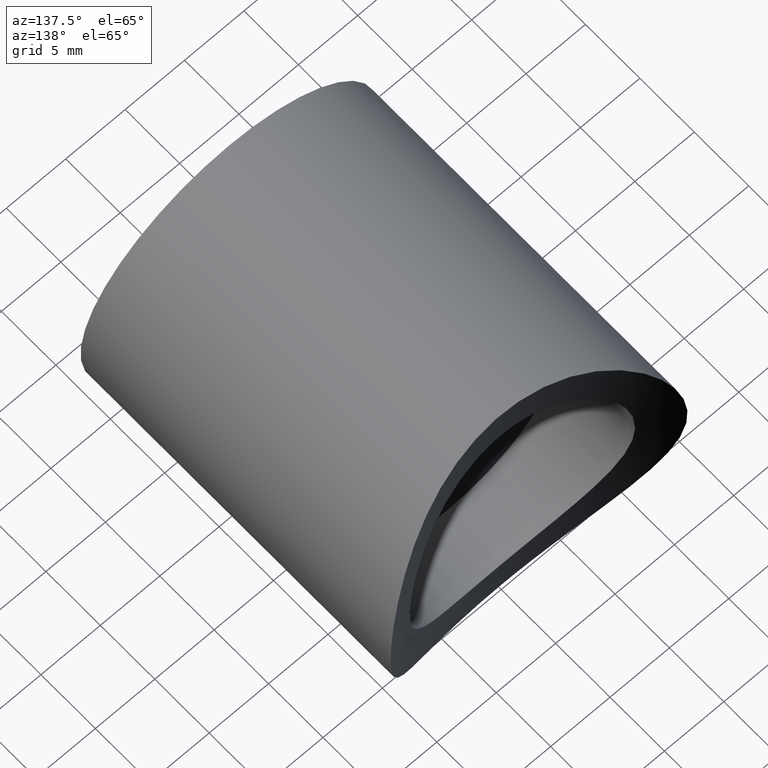
[diagram: clean part render]
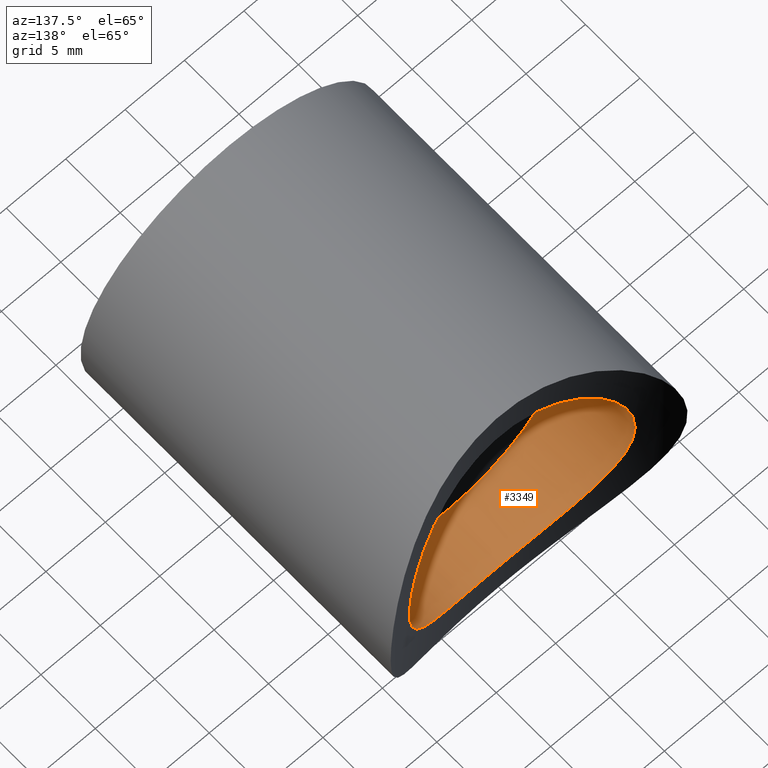
[diagram: same view with one face highlighted and labeled with its STEP entity id]
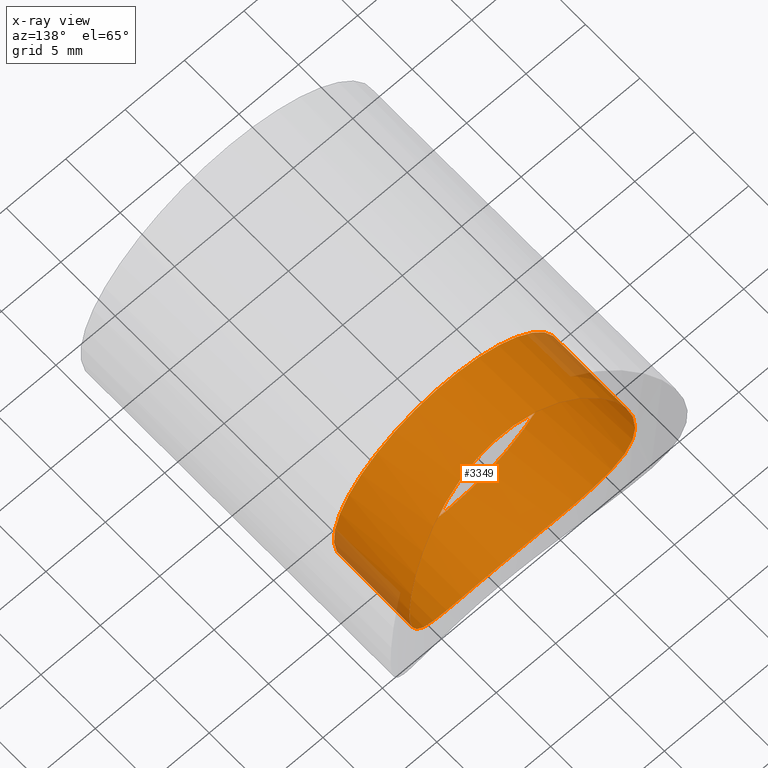
[diagram: x-ray of the same camera — body ghosted, the highlighted face saturated]
A machine part, auxiliary view. The second image highlights one B-rep face of the part: STEP entity #3349.
The next image is the same camera in x-ray: the body ghosted, the highlighted face saturated — about 5% of this face is hidden behind the body in this view.
In plain terms, the highlighted cylindrical surface (bore or boss wall) has radius 9.5 mm, axis along (-0, -1, -0).
Its self-contained STEP definition (entity closure, byte-faithful):
#130 = VERTEX_POINT ( 'NONE', #10919 ) ;
#272 = DIRECTION ( 'NONE',  ( 0.000000000000000000, 0.000000000000000000, -1.000000000000000000 ) ) ;
#616 = CARTESIAN_POINT ( 'NONE',  ( 8.990454928467288553, 26.73562935201542601, -3.085357486730779364 ) ) ;
#668 = CARTESIAN_POINT ( 'NONE',  ( 8.237217831319831873, 26.44533245457878223, 4.772522679604954021 ) ) ;
#724 = CARTESIAN_POINT ( 'NONE',  ( 7.723775209362806038, 26.26772316830312803, 5.539673194081197849 ) ) ;
#772 = CARTESIAN_POINT ( 'NONE',  ( 0.6367274069740926912, 25.00637850114738114, 9.483817578424563521 ) ) ;
#805 = DIRECTION ( 'NONE',  ( -0.000000000000000000, -1.000000000000000000, -0.000000000000000000 ) ) ;
#819 = CARTESIAN_POINT ( 'NONE',  ( -8.645799211394617600, 26.60029495687120260, 3.949277084034160001 ) ) ;
#873 = VERTEX_POINT ( 'NONE', #3910 ) ;
#1027 = CARTESIAN_POINT ( 'NONE',  ( -2.477368257026581588, 25.11946122093323552, 9.192778334958580544 ) ) ;
#1748 = CARTESIAN_POINT ( 'NONE',  ( 8.527852376057262873, 26.55434819827350168, -4.231666778120477090 ) ) ;
#1800 = CARTESIAN_POINT ( 'NONE',  ( 2.476898393227373152, 25.12545592991584442, -9.176787205671457670 ) ) ;
#1850 = CARTESIAN_POINT ( 'NONE',  ( 9.011774073292215803, 26.74291890696499863, 3.071009793062427828 ) ) ;
#2057 = CARTESIAN_POINT ( 'NONE',  ( -8.226763975962532172, 26.44389147346072733, -4.760989118344688187 ) ) ;
#2107 = CARTESIAN_POINT ( 'NONE',  ( -7.153422303367721113, 26.07924161334418756, 6.282005769728957745 ) ) ;
#2157 = CARTESIAN_POINT ( 'NONE',  ( -3.072267678048737682, 25.18916197169116700, 9.011029675267774763 ) ) ;
#2211 = CARTESIAN_POINT ( 'NONE',  ( -4.766860932096798287, 25.47348250131881642, 8.223378779994927612 ) ) ;
#2942 = CARTESIAN_POINT ( 'NONE',  ( 8.529957691302314515, 26.55510728411172394, 4.228829020159077245 ) ) ;
#2992 = CARTESIAN_POINT ( 'NONE',  ( 9.376693620057872991, 26.89456204277399820, 1.557247264431475431 ) ) ;
#3042 = ORIENTED_EDGE ( 'NONE', *, *, #3471, .T. ) ;
#3097 = CARTESIAN_POINT ( 'NONE',  ( 9.500381635804105329, 26.94717925683632842, 0.3015378183090482445 ) ) ;
#3130 = CARTESIAN_POINT ( 'NONE',  ( 0.000000000000000000, 49.15000000000000568, 0.000000000000000000 ) ) ;
#3147 = CARTESIAN_POINT ( 'NONE',  ( -9.434962940845295520, 26.91889607188140943, 1.273160634128868818 ) ) ;
#3227 = FACE_OUTER_BOUND ( 'NONE', #12483, .T. ) ;
#3242 = CARTESIAN_POINT ( 'NONE',  ( -3.934444486296401422, 25.32087562434656292, 8.652572895259922348 ) ) ;
#3296 = CARTESIAN_POINT ( 'NONE',  ( -9.187328606542145337, 26.81541917489055393, 2.496488888585715493 ) ) ;
#3343 = CARTESIAN_POINT ( 'NONE',  ( -8.510542519066497391, 26.54872143713437183, 4.232847530208180054 ) ) ;
#3349 = ADVANCED_FACE ( 'NONE', ( #9012, #3227 ), #5097, .F. ) ;
#3471 = EDGE_CURVE ( 'NONE', #130, #130, #14219, .T. ) ;
#3599 = EDGE_LOOP ( 'NONE', ( #13881 ) ) ;
#3910 = CARTESIAN_POINT ( 'NONE',  ( 0.000000000000000000, 24.99999999999999289, -9.500000000000000000 ) ) ;
#4071 = CARTESIAN_POINT ( 'NONE',  ( 4.777492450567407900, 25.47141337804063355, -8.234587001808481688 ) ) ;
#4119 = CARTESIAN_POINT ( 'NONE',  ( 1.573465314519182368, 25.04932036444492738, 9.374090728484139490 ) ) ;
#4176 = CARTESIAN_POINT ( 'NONE',  ( 9.251696904950398093, 26.84230876325579018, -2.180429874088624320 ) ) ;
#4281 = CARTESIAN_POINT ( 'NONE',  ( 3.949770568916393110, 25.32343629741845703, 8.645516123807398756 ) ) ;
#4330 = CARTESIAN_POINT ( 'NONE',  ( -4.218238365120579481, 25.36961082937598988, 8.517827586905386994 ) ) ;
#4384 = CARTESIAN_POINT ( 'NONE',  ( -6.277639297956271847, 25.82888153849502544, -7.137010952105956818 ) ) ;
#4537 = CARTESIAN_POINT ( 'NONE',  ( -8.996200247582851972, 26.73793805095572296, -3.068502061978073403 ) ) ;
#4873 = CARTESIAN_POINT ( 'NONE',  ( 0.000000000000000000, 20.00000000000000000, 0.000000000000000000 ) ) ;
#5097 = CYLINDRICAL_SURFACE ( 'NONE', #10809, 9.500000000000000000 ) ;
#5284 = CARTESIAN_POINT ( 'NONE',  ( 0.6343488039815247115, 24.99999999999999645, -9.499999999999998224 ) ) ;
#5393 = CARTESIAN_POINT ( 'NONE',  ( 9.193056664637765607, 26.81778522380194829, 2.475342058951149671 ) ) ;
#5440 = CARTESIAN_POINT ( 'NONE',  ( 9.173829633520957927, 26.81005503092796971, -2.487681751522923257 ) ) ;
#5494 = CARTESIAN_POINT ( 'NONE',  ( 7.544457634476878560, 26.20576920126883635, -5.806659888272251102 ) ) ;
#5544 = CARTESIAN_POINT ( 'NONE',  ( -5.553079317562386485, 25.64565565303479389, -7.714129740837597282 ) ) ;
#5596 = CARTESIAN_POINT ( 'NONE',  ( -7.542979384534642229, 26.20534345693086209, 5.807806941451846505 ) ) ;
#5646 = CARTESIAN_POINT ( 'NONE',  ( -8.891121034785888000, 26.69589652520494027, -3.360649652997358849 ) ) ;
#5704 = CARTESIAN_POINT ( 'NONE',  ( -7.161008188894701476, 26.08167090256071319, -6.272936677098544855 ) ) ;
#6447 = EDGE_CURVE ( 'NONE', #873, #873, #6945, .T. ) ;
#6500 = CARTESIAN_POINT ( 'NONE',  ( 8.236572966326859202, 26.44503504265567528, -4.774411568650106297 ) ) ;
#6594 = CARTESIAN_POINT ( 'NONE',  ( 5.548325332916299146, 25.64451264848279521, -7.717629189169089798 ) ) ;
#6647 = CARTESIAN_POINT ( 'NONE',  ( 7.152746981666464166, 26.07914938774874969, -6.282022759720637950 ) ) ;
#6702 = CARTESIAN_POINT ( 'NONE',  ( 3.093813615829780428, 25.19203433111395185, 9.003380680992764340 ) ) ;
#6749 = CARTESIAN_POINT ( 'NONE',  ( -5.799092914521392750, 25.70073719207622176, 7.549815552955287501 ) ) ;
#6802 = CARTESIAN_POINT ( 'NONE',  ( -7.550169701924356325, 26.20768821133579962, -5.798833281063221712 ) ) ;
#6905 = CARTESIAN_POINT ( 'NONE',  ( -6.508174638112107502, 25.89236685973550323, -6.927380896768321250 ) ) ;
#6945 = B_SPLINE_CURVE_WITH_KNOTS ( 'NONE', 3,
 ( #9032, #5284, #14853, #8932, #1800, #11334, #12473, #9091, #4071, #6594, #10134, #7725, #10246, #6647, #5494, #6500, #1748, #13618, #616, #5440, #4176, #7674, #10079, #3097, #13778, #10188, #2992, #5393, #1850, #2942, #668, #724, #11429, #14950, #13721, #11283, #7829, #12570, #13825, #12519, #4281, #6702, #15002, #4119, #14895, #772, #7779, #15278, #8142, #11537, #1027, #2157, #3242, #4330, #2211, #7932, #6749, #12727, #2107, #5596, #10448, #9355, #3343, #819, #8089, #3296, #3147, #9303, #8040, #13930, #11635, #12840, #4537, #5646, #10345, #11482, #2057, #14080, #6802, #5704, #6905, #4384, #12675, #5544, #13980, #10401, #15109, #10500, #14028, #12892, #13877, #9139, #15057, #7989, #15223 ),
 .UNSPECIFIED., .T., .F.,
 ( 4, 2, 2, 2, 2, 2, 2, 2, 2, 2, 2, 2, 2, 2, 2, 2, 2, 2, 2, 2, 2, 2, 2, 1, 2, 2, 2, 2, 2, 2, 2, 2, 2, 2, 2, 2, 2, 2, 2, 2, 2, 2, 2, 2, 2, 2, 2, 4 ),
 ( 0.000000000000000000, 0.001874720630790744583, 0.002812080946186115791, 0.003749441261581487866, 0.005624161892372231582, 0.006561522207767602789, 0.007498882523162973997, 0.009373603153953713810, 0.01124832378474445449, 0.01218568410013982396, 0.01312304441553519517, 0.01499776504632593759, 0.01593512536172130359, 0.01687248567711667827, 0.01874720630790742068, 0.02062192693869816310, 0.02155928725409353083, 0.02249664756948889857, 0.02437136820027964099, 0.02530872851567501219, 0.02624608883107038340, 0.02812080946186112582, 0.02905816977725649702, 0.02999553009265186476, 0.03093289040804723250, 0.03187025072344260024, 0.03374497135423334265, 0.03468233166962871733, 0.03561969198502408507, 0.03749441261581483442, 0.03936913324660557684, 0.04030649356200094457, 0.04124385387739632619, 0.04311857450818706167, 0.04499329513897779714, 0.04686801576976853956, 0.04780537608516390730, 0.04874273640055928197, 0.04968009671595465665, 0.05061745703135002439, 0.05249217766214075986, 0.05342953797753613454, 0.05436689829293150922, 0.05624161892372224469, 0.05717897923911761937, 0.05811633955451299405, 0.05905369986990836872, 0.05999106018530373646 ),
 .UNSPECIFIED. ) ;
#7674 = CARTESIAN_POINT ( 'NONE',  ( 9.437043816654819395, 26.91978093354746093, -1.258921852254839546 ) ) ;
#7725 = CARTESIAN_POINT ( 'NONE',  ( 6.275586754272981516, 25.82833350539628370, -7.138791081410557737 ) ) ;
#7779 = CARTESIAN_POINT ( 'NONE',  ( 0.01253060823599894645, 24.99394442722089593, 9.515361503100102425 ) ) ;
#7829 = CARTESIAN_POINT ( 'NONE',  ( 5.813957471726459048, 25.70439223781708904, 7.538538968242263216 ) ) ;
#7932 = CARTESIAN_POINT ( 'NONE',  ( -5.031704170482039551, 25.52854408895725413, 8.063916636441506469 ) ) ;
#7989 = CARTESIAN_POINT ( 'NONE',  ( -0.3171744019907618006, 24.99999999999999289, -9.500000000000003553 ) ) ;
#8040 = CARTESIAN_POINT ( 'NONE',  ( -9.500662680517622860, 26.94729950751320757, -0.6160530832159534231 ) ) ;
#8089 = CARTESIAN_POINT ( 'NONE',  ( -9.005327352623410775, 26.74034258594000235, 3.088788311459563118 ) ) ;
#8142 = CARTESIAN_POINT ( 'NONE',  ( -1.238753796529355578, 25.02975783685547384, 9.424137995978076887 ) ) ;
#8198 = AXIS2_PLACEMENT_3D ( 'NONE', #4873, #9624, #272 ) ;
#8932 = CARTESIAN_POINT ( 'NONE',  ( 2.174000736269224632, 25.09609725218492571, -9.253158087516538899 ) ) ;
#9012 = FACE_OUTER_BOUND ( 'NONE', #3599, .T. ) ;
#9032 = CARTESIAN_POINT ( 'NONE',  ( 3.523657060577889411E-16, 24.99999999999999645, -9.500000000000001776 ) ) ;
#9091 = CARTESIAN_POINT ( 'NONE',  ( 4.234205104439968004, 25.36699973984651635, -8.526914707248510084 ) ) ;
#9139 = CARTESIAN_POINT ( 'NONE',  ( -1.262451520650295089, 25.03097868495188649, -9.421015230271059693 ) ) ;
#9303 = CARTESIAN_POINT ( 'NONE',  ( -9.499326505657210262, 26.94672779820567854, 0.6363243742295865424 ) ) ;
#9355 = CARTESIAN_POINT ( 'NONE',  ( -8.216106106290528288, 26.44003022689674154, 4.779323449297374182 ) ) ;
#9624 = DIRECTION ( 'NONE',  ( 0.000000000000000000, -1.000000000000000000, 0.000000000000000000 ) ) ;
#10079 = CARTESIAN_POINT ( 'NONE',  ( 9.499214769619738874, 26.94667998977249113, -0.6384542957926184759 ) ) ;
#10134 = CARTESIAN_POINT ( 'NONE',  ( 5.798810078399077028, 25.70523685616370813, -7.531210320333035391 ) ) ;
#10188 = CARTESIAN_POINT ( 'NONE',  ( 9.423099453564322658, 26.91424425455463521, 1.247042695232502885 ) ) ;
#10246 = CARTESIAN_POINT ( 'NONE',  ( 6.502903001252344772, 25.89090259929586679, -6.932254495519480031 ) ) ;
#10345 = CARTESIAN_POINT ( 'NONE',  ( -8.653247290357748867, 26.60315748394174307, -3.932850197670830106 ) ) ;
#10401 = CARTESIAN_POINT ( 'NONE',  ( -4.244949404084841227, 25.36881882954117629, -8.521892304879829183 ) ) ;
#10448 = CARTESIAN_POINT ( 'NONE',  ( -8.056722323660354235, 26.38281855678741294, 5.043165203084821968 ) ) ;
#10500 = CARTESIAN_POINT ( 'NONE',  ( -3.082449562587934899, 25.19564369067418141, -8.991431942035326585 ) ) ;
#10809 = AXIS2_PLACEMENT_3D ( 'NONE', #3130, #805, #13964 ) ;
#10919 = CARTESIAN_POINT ( 'NONE',  ( 0.000000000000000000, 20.00000000000000000, -9.500000000000000000 ) ) ;
#11283 = CARTESIAN_POINT ( 'NONE',  ( 6.286814923218981832, 25.82826828645841388, 7.148713453203217938 ) ) ;
#11334 = CARTESIAN_POINT ( 'NONE',  ( 3.077021658739412580, 25.19492368750545452, -8.993352366064399916 ) ) ;
#11429 = CARTESIAN_POINT ( 'NONE',  ( 7.540132609630785687, 26.20634207888515377, 5.787255511451570023 ) ) ;
#11482 = CARTESIAN_POINT ( 'NONE',  ( -8.520452612577113172, 26.55245815996789460, -4.212902820861092579 ) ) ;
#11537 = CARTESIAN_POINT ( 'NONE',  ( -1.553460638403711513, 25.04803593235149606, 9.377387258404233705 ) ) ;
#11635 = CARTESIAN_POINT ( 'NONE',  ( -9.255283127220215178, 26.84379706405244548, -2.165420669590643943 ) ) ;
#12473 = CARTESIAN_POINT ( 'NONE',  ( 3.373369171928280341, 25.23500148463071469, -8.886341893753190391 ) ) ;
#12483 = EDGE_LOOP ( 'NONE', ( #3042 ) ) ;
#12519 = CARTESIAN_POINT ( 'NONE',  ( 4.229353381389522326, 25.37159070499658853, 8.512301521622472222 ) ) ;
#12570 = CARTESIAN_POINT ( 'NONE',  ( 5.044969069780084858, 25.53136713757002596, 8.055662908764865904 ) ) ;
#12675 = CARTESIAN_POINT ( 'NONE',  ( -5.800068759184897615, 25.70554385703263733, -7.530264462451011553 ) ) ;
#12727 = CARTESIAN_POINT ( 'NONE',  ( -6.275471604676970294, 25.82512488083458635, 7.159155207153967027 ) ) ;
#12840 = CARTESIAN_POINT ( 'NONE',  ( -9.178132630791342450, 26.81182592256003971, -2.471680644941142813 ) ) ;
#12892 = CARTESIAN_POINT ( 'NONE',  ( -2.183789432479962045, 25.09698196075515852, -9.250860053672596450 ) ) ;
#13618 = CARTESIAN_POINT ( 'NONE',  ( 8.884871832431228356, 26.69342269747138019, -3.377035680665611661 ) ) ;
#13721 = CARTESIAN_POINT ( 'NONE',  ( 6.938676291945659713, 26.01715648012772775, 6.496099429218706867 ) ) ;
#13778 = CARTESIAN_POINT ( 'NONE',  ( 9.485152732290417887, 26.94064353638326281, 0.6178967879999761603 ) ) ;
#13825 = CARTESIAN_POINT ( 'NONE',  ( 4.776994683298578792, 25.47553062007274249, 8.217483131435336929 ) ) ;
#13877 = CARTESIAN_POINT ( 'NONE',  ( -1.572090179147042521, 25.04927085023611610, -9.374213592972790110 ) ) ;
#13881 = ORIENTED_EDGE ( 'NONE', *, *, #6447, .F. ) ;
#13930 = CARTESIAN_POINT ( 'NONE',  ( -9.440023145085602252, 26.92104852317643449, -1.238229698173419990 ) ) ;
#13964 = DIRECTION ( 'NONE',  ( 0.000000000000000000, 0.000000000000000000, -1.000000000000000000 ) ) ;
#13980 = CARTESIAN_POINT ( 'NONE',  ( -4.787628771710840780, 25.47354158460969131, -8.228399662555506922 ) ) ;
#14028 = CARTESIAN_POINT ( 'NONE',  ( -2.485849473620660000, 25.12640256134529793, -9.174306299042536139 ) ) ;
#14080 = CARTESIAN_POINT ( 'NONE',  ( -8.065665250542709330, 26.38598009467085248, -5.028958794178337577 ) ) ;
#14219 = CIRCLE ( 'NONE', #8198, 9.500000000000000000 ) ;
#14853 = CARTESIAN_POINT ( 'NONE',  ( 1.256893714816299523, 25.02493451614621378, -9.437111494792395305 ) ) ;
#14895 = CARTESIAN_POINT ( 'NONE',  ( 1.260343601547150305, 25.03089121637467684, 9.421238629142056453 ) ) ;
#14950 = CARTESIAN_POINT ( 'NONE',  ( 7.147168841551585494, 26.08090777420342121, 6.266091578966777043 ) ) ;
#15002 = CARTESIAN_POINT ( 'NONE',  ( 2.500404097984879392, 25.12179392227971775, 9.186700151532582126 ) ) ;
#15057 = CARTESIAN_POINT ( 'NONE',  ( -0.6353278872126878474, 25.00631901483396646, -9.483969120928298580 ) ) ;
#15109 = CARTESIAN_POINT ( 'NONE',  ( -3.378324793188789421, 25.23567709680905224, -8.884536148079376972 ) ) ;
#15223 = CARTESIAN_POINT ( 'NONE',  ( 3.523657060577889411E-16, 24.99999999999999645, -9.500000000000001776 ) ) ;
#15278 = CARTESIAN_POINT ( 'NONE',  ( -0.6128182607090451040, 25.00574505691896832, 9.485427861461765531 ) ) ;